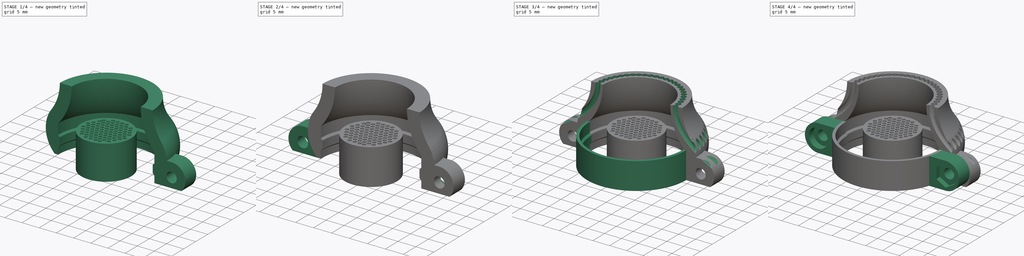
[diagram: build sequence overview — one tinted view per stage of 4, left to right]
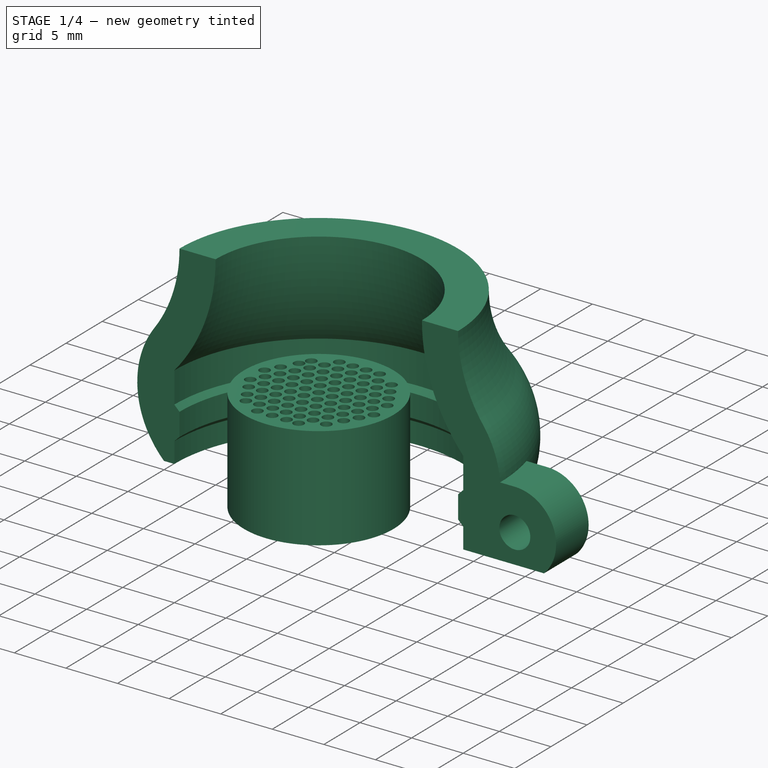
[diagram: stage 1 of 4 — iso view after this stage's code; geometry added in this stage tinted green]
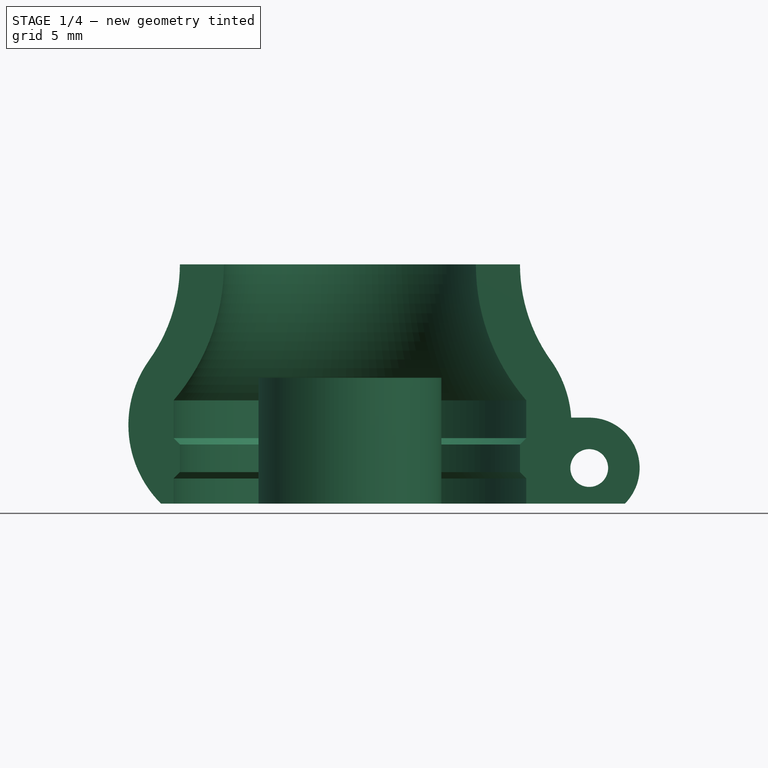
[diagram: stage 1 of 4 — front view after this stage's code; geometry added in this stage tinted green]
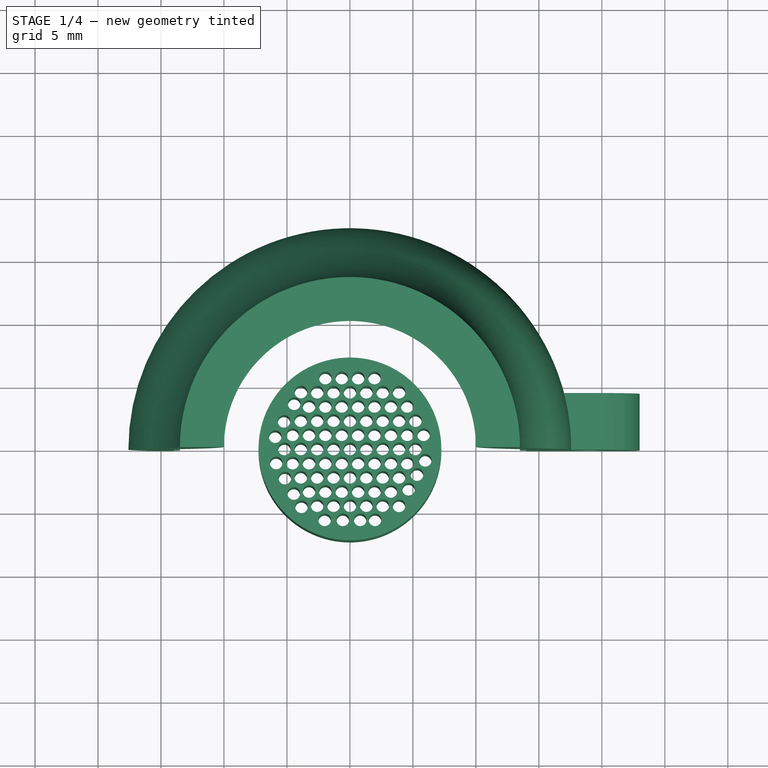
[diagram: stage 1 of 4 — top view after this stage's code; geometry added in this stage tinted green]
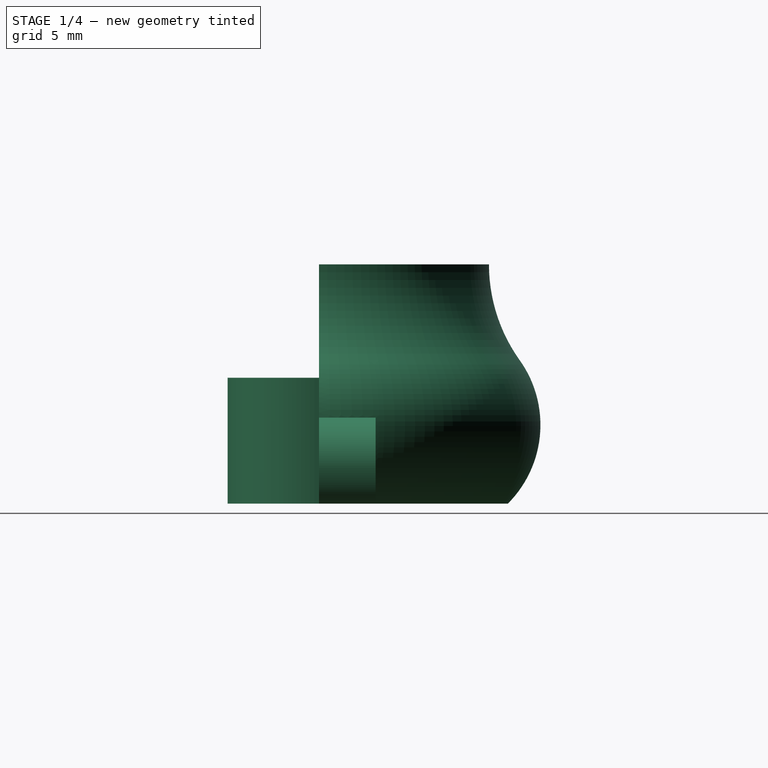
[diagram: stage 1 of 4 — right view after this stage's code; geometry added in this stage tinted green]
FCSTD DOCUMENT  (FreeCAD 0.19R24291 (Git))
Label: CAD
License: All rights reserved
LicenseURL: http://en.wikipedia.org/wiki/All_rights_reserved
objects: Sketcher::SketchObject×11, PartDesign::Pocket×4, PartDesign::Pad×3, PartDesign::Body×3, PartDesign::Revolution×2, PartDesign::Plane×1, PartDesign::Mirrored×1, PartDesign::SubtractivePipe×1, PartDesign::PolarPattern×1, App::Part×1
note: 37 computed .brp shape members not serialized (recipe doc carries the construction recipe); baked Part::Feature solids carry a one-line shape summary decoded from their .brp

FEATURE [Sketcher::SketchObject] Sketch004
  FullyConstrained = true
  MapMode = 5
  Placement = pos=(0,0,0) rot=(1,0,0;1.5708rad)
  Support = -> [XZ_Plane002]
  sketch-geometry (10):
    g0: LineSegment StartX=13.5 StartY=4.7 StartZ=0 EndX=13.5 EndY=2.5 EndZ=0
    g1: LineSegment StartX=13.5 StartY=2.5 StartZ=0 EndX=14 EndY=2 EndZ=0
    g2: LineSegment StartX=14 StartY=2 StartZ=0 EndX=14 EndY=0 EndZ=0
    g3: LineSegment StartX=14 StartY=0 StartZ=0 EndX=15 EndY=-1.8e-15 EndZ=0
    g4: LineSegment StartX=13.5 StartY=4.7 StartZ=0 EndX=14 EndY=5.2 EndZ=0
    g5: LineSegment StartX=14 StartY=5.2 StartZ=0 EndX=14 EndY=8.2 EndZ=0
    g6: LineSegment StartX=10 StartY=19 StartZ=0 EndX=13.5 EndY=19 EndZ=0
    g7: ArcOfCircle CenterX=26.58 CenterY=19 CenterZ=0 NormalX=0 NormalY=0 NormalZ=1 AngleXU=0 Radius=16.58 StartAngle=3.14159 EndAngle=3.851
    g8: ArcOfCircle CenterX=26.58 CenterY=19 CenterZ=0 NormalX=0 NormalY=0 NormalZ=1 AngleXU=0 Radius=13.08 StartAngle=3.14159 EndAngle=3.76233
    g9: ArcOfCircle CenterX=8.7493 CenterY=6.2507 CenterZ=0 NormalX=0 NormalY=0 NormalZ=1 AngleXU=0 Radius=8.83982 StartAngle=5.49779 EndAngle=6.90392
  constraints (32):
    c: Vertical(g0)
    c: Coincident(g0,g1)
    c: Coincident(g1,g2)
    c: PointOnObject(g2,g-1)
    c: Coincident(g2,g3)
    c: PointOnObject(g3,g-1)
    c: Coincident(g0,g4)
    c: Coincident(g4,g5)
    c: Vertical(g5)
    c: Vertical(g2)
    c: Angle(g1,g-1) = 0.785398
    c: Vertical(g1,g4)
    c: Distance(g2) = 2
    c: Distance(g5) = 3
    c: Angle(g4,g-2) = 0.785398
    c: Distance(g0) = 2.2
    c: DistanceX(g0,g4) = 0.5
    c: DistanceX(g-1,g5) = 14
    c: Horizontal(g6)
    c: DistanceX(g5,g9) = 1
    c: Coincident(g7,g6)
    c: Perpendicular(g7,g6,g6) = 1.5708
    c: Coincident(g7,g5)
    c: Distance(g6) = 3.5
    c: Coincident(g8,g7)
    c: Coincident(g8,g6)
    c: Coincident(g9,g8)
    c: Tangent(g8,g9,g8) = 1.5708
    c: DistanceY(g-1,g6) = 19
    c: Coincident(g9,g3)
    c: Angle(g-1,g9,g3) = 0.785398
    c: DistanceX(g-1,g6) = 10
FEATURE [PartDesign::Revolution] Revolution001
  Angle = 180
  Axis = (0,-2e-16,1)
  Base = (0,0,0)
  Placement = pos=(0,0,0) rot=(1,0,0;1.5708rad)
  Profile = -> Sketch004
  ReferenceAxis = -> Sketch004 [V_Axis]
FEATURE [Sketcher::SketchObject] Sketch005
  FullyConstrained = true
  MapMode = 5
  Placement = pos=(0,0,0) rot=(1,0,0;1.5708rad)
  Support = -> [Revolution001]
  sketch-geometry (5):
    g0: LineSegment StartX=14 StartY=0 StartZ=0 EndX=21.8284 EndY=-9e-16 EndZ=0
    g1: ArcOfCircle CenterX=19 CenterY=2.82843 CenterZ=0 NormalX=0 NormalY=0 NormalZ=1 AngleXU=0 Radius=4 StartAngle=5.49779 EndAngle=7.85398
    g2: LineSegment StartX=19 StartY=6.82843 StartZ=0 EndX=14 EndY=6.82843 EndZ=0
    g3: LineSegment StartX=14 StartY=6.82843 StartZ=0 EndX=14 EndY=0 EndZ=0
    g4: Circle CenterX=19 CenterY=2.82843 CenterZ=0 NormalX=0 NormalY=0 NormalZ=1 AngleXU=0 Radius=1.5
  constraints (15):
    c: PointOnObject(g0,g-1)
    c: PointOnObject(g0,g-1)
    c: Coincident(g1,g0)
    c: Coincident(g2,g1)
    c: Horizontal(g2)
    c: Coincident(g3,g2)
    c: Coincident(g3,g0)
    c: Vertical(g3)
    c: Radius(g1) = 4
    c: Tangent(g2,g1,g1) = -1.5708
    c: Coincident(g4,g1)
    c: Radius(g4) = 1.5
    c: Angle(g-1,g1,g0) = 0.785398
    c: Distance(g2) = 5
    c: Distance(g-1,g0) = 14
FEATURE [PartDesign::Pad] Pad001
  BaseFeature = -> Revolution001
  Direction = (1,1,1)
  Length = 4.5
  Length2 = 100
  Placement = pos=(0,0,0) rot=(1,0,0;1.5708rad)
  Profile = -> Sketch005
  Reversed = true
  Type = 0
FEATURE [PartDesign::Body] Body001  label="Mount half v0.2"
  Group = -> [Sketch004,Revolution001,Sketch005,Pad001,Mirrored,Sketch006,Pocket003,Sketch007,Pocket002,Sketch010,Sketch011,SubtractivePipe,PolarPattern]
  Origin = -> Origin002
  Tip = -> PolarPattern
FEATURE [Sketcher::SketchObject] Sketch012
  FullyConstrained = false
  MapMode = 5
  Support = -> [XY_Plane003]
  sketch-geometry (126):
    g0: Circle CenterX=0 CenterY=0 CenterZ=0 NormalX=0 NormalY=0 NormalZ=1 AngleXU=0 Radius=0.5
    g1: LineSegment StartX=1.3 StartY=0 StartZ=0 EndX=0.65 EndY=1.12583 EndZ=0
    g2: LineSegment StartX=0.65 StartY=1.12583 StartZ=0 EndX=-0.65 EndY=1.12583 EndZ=0
    g3: LineSegment StartX=-0.65 StartY=1.12583 StartZ=0 EndX=-1.3 EndY=0 EndZ=0
    g4: LineSegment StartX=-1.3 StartY=0 StartZ=0 EndX=-0.65 EndY=-1.12583 EndZ=0
    g5: LineSegment StartX=-0.65 StartY=-1.12583 StartZ=0 EndX=0.65 EndY=-1.12583 EndZ=0
    g6: LineSegment StartX=0.65 StartY=-1.12583 StartZ=0 EndX=1.3 EndY=0 EndZ=0
    g7: Circle CenterX=0 CenterY=0 CenterZ=0 NormalX=0 NormalY=0 NormalZ=1 AngleXU=0 Radius=1.3
    g8: LineSegment StartX=2.6 StartY=0 StartZ=0 EndX=1.3 EndY=2.25167 EndZ=0
    g9: LineSegment StartX=1.3 StartY=2.25167 StartZ=0 EndX=-1.3 EndY=2.25167 EndZ=0
    g10: LineSegment StartX=-1.3 StartY=2.25167 StartZ=0 EndX=-2.6 EndY=0 EndZ=0
    g11: LineSegment StartX=-2.6 StartY=0 StartZ=0 EndX=-1.3 EndY=-2.25167 EndZ=0
    g12: LineSegment StartX=-1.3 StartY=-2.25167 StartZ=0 EndX=1.3 EndY=-2.25167 EndZ=0
    g13: LineSegment StartX=1.3 StartY=-2.25167 StartZ=0 EndX=2.6 EndY=0 EndZ=0
    g14: Circle CenterX=0 CenterY=0 CenterZ=0 NormalX=0 NormalY=0 NormalZ=1 AngleXU=0 Radius=2.6
    g15: LineSegment StartX=3.9 StartY=0 StartZ=0 EndX=1.95 EndY=3.3775 EndZ=0
    g16: LineSegment StartX=1.95 StartY=3.3775 StartZ=0 EndX=-1.95 EndY=3.3775 EndZ=0
    g17: LineSegment StartX=-1.95 StartY=3.3775 StartZ=0 EndX=-3.9 EndY=-4e-16 EndZ=0
    g18: LineSegment StartX=-3.9 StartY=-4e-16 StartZ=0 EndX=-1.95 EndY=-3.3775 EndZ=0
    g19: LineSegment StartX=-1.95 StartY=-3.3775 StartZ=0 EndX=1.95 EndY=-3.3775 EndZ=0
    g20: LineSegment StartX=1.95 StartY=-3.3775 StartZ=0 EndX=3.9 EndY=0 EndZ=0
    g21: Circle CenterX=0 CenterY=0 CenterZ=0 NormalX=0 NormalY=0 NormalZ=1 AngleXU=0 Radius=3.9
    g22: Circle CenterX=-0.65 CenterY=1.12583 CenterZ=0 NormalX=0 NormalY=0 NormalZ=1 AngleXU=0 Radius=0.5
    g23: Circle CenterX=0.65 CenterY=1.12583 CenterZ=0 NormalX=0 NormalY=0 NormalZ=1 AngleXU=0 Radius=0.5
    g24: Circle CenterX=1.3 CenterY=0 CenterZ=0 NormalX=0 NormalY=0 NormalZ=1 AngleXU=0 Radius=0.5
    g25: Circle CenterX=0.65 CenterY=-1.12583 CenterZ=0 NormalX=0 NormalY=0 NormalZ=1 AngleXU=0 Radius=0.5
    g26: Circle CenterX=-0.65 CenterY=-1.12583 CenterZ=0 NormalX=0 NormalY=0 NormalZ=1 AngleXU=0 Radius=0.5
    g27: Circle CenterX=-1.3 CenterY=0 CenterZ=0 NormalX=0 NormalY=0 NormalZ=1 AngleXU=0 Radius=0.5
    g28: Circle CenterX=-1.3 CenterY=2.25167 CenterZ=0 NormalX=0 NormalY=0 NormalZ=1 AngleXU=0 Radius=0.5
    g29: Circle CenterX=-1e-16 CenterY=2.25167 CenterZ=0 NormalX=0 NormalY=0 NormalZ=1 AngleXU=0 Radius=0.5
    g30: Circle CenterX=1.3 CenterY=2.25167 CenterZ=0 NormalX=0 NormalY=0 NormalZ=1 AngleXU=0 Radius=0.5
    g31: Circle CenterX=1.95 CenterY=1.12583 CenterZ=0 NormalX=0 NormalY=0 NormalZ=1 AngleXU=0 Radius=0.5
    g32: Circle CenterX=2.6 CenterY=0 CenterZ=0 NormalX=0 NormalY=0 NormalZ=1 AngleXU=0 Radius=0.5
    g33: Circle CenterX=1.95 CenterY=-1.12583 CenterZ=0 NormalX=0 NormalY=0 NormalZ=1 AngleXU=0 Radius=0.5
    g34: Circle CenterX=1.3 CenterY=-2.25167 CenterZ=0 NormalX=0 NormalY=0 NormalZ=1 AngleXU=0 Radius=0.5
    g35: Circle CenterX=-3e-16 CenterY=-2.25167 CenterZ=0 NormalX=0 NormalY=0 NormalZ=1 AngleXU=0 Radius=0.5
    g36: Circle CenterX=-1.3 CenterY=-2.25167 CenterZ=0 NormalX=0 NormalY=0 NormalZ=1 AngleXU=0 Radius=0.5
    g37: Circle CenterX=-1.95 CenterY=-1.12583 CenterZ=0 NormalX=0 NormalY=0 NormalZ=1 AngleXU=0 Radius=0.5
    g38: Circle CenterX=-2.6 CenterY=0 CenterZ=0 NormalX=0 NormalY=0 NormalZ=1 AngleXU=0 Radius=0.5
    g39: Circle CenterX=-1.95 CenterY=1.12583 CenterZ=0 NormalX=0 NormalY=0 NormalZ=1 AngleXU=0 Radius=0.5
    g40: LineSegment StartX=1.3 StartY=2.25167 StartZ=0 EndX=0.65 EndY=1.12583 EndZ=0
    g41: Circle CenterX=-1.95 CenterY=3.3775 CenterZ=0 NormalX=0 NormalY=0 NormalZ=1 AngleXU=0 Radius=0.5
    g42: Circle CenterX=1.95 CenterY=3.3775 CenterZ=0 NormalX=0 NormalY=0 NormalZ=1 AngleXU=0 Radius=0.5
    g43: Circle CenterX=-0.65 CenterY=3.3775 CenterZ=0 NormalX=0 NormalY=0 NormalZ=1 AngleXU=0 Radius=0.5
    g44: Circle CenterX=0.65 CenterY=3.3775 CenterZ=0 NormalX=0 NormalY=0 NormalZ=1 AngleXU=0 Radius=0.5
    g45: Circle CenterX=2.6 CenterY=2.25167 CenterZ=0 NormalX=0 NormalY=0 NormalZ=1 AngleXU=0 Radius=0.5
    g46: Circle CenterX=3.25 CenterY=1.12583 CenterZ=0 NormalX=0 NormalY=0 NormalZ=1 AngleXU=0 Radius=0.5
    g47: Circle CenterX=3.9 CenterY=0 CenterZ=0 NormalX=0 NormalY=0 NormalZ=1 AngleXU=0 Radius=0.5
    g48: Circle CenterX=3.25 CenterY=-1.12583 CenterZ=0 NormalX=0 NormalY=0 NormalZ=1 AngleXU=0 Radius=0.5
    g49: Circle CenterX=2.6 CenterY=-2.25167 CenterZ=0 NormalX=0 NormalY=0 NormalZ=1 AngleXU=0 Radius=0.5
    g50: Circle CenterX=1.95 CenterY=-3.3775 CenterZ=0 NormalX=0 NormalY=0 NormalZ=1 AngleXU=0 Radius=0.5
    g51: Circle CenterX=0.65 CenterY=-3.3775 CenterZ=0 NormalX=0 NormalY=0 NormalZ=1 AngleXU=0 Radius=0.5
    g52: Circle CenterX=-0.65 CenterY=-3.3775 CenterZ=0 NormalX=0 NormalY=0 NormalZ=1 AngleXU=0 Radius=0.5
    g53: Circle CenterX=-1.95 CenterY=-3.3775 CenterZ=0 NormalX=0 NormalY=0 NormalZ=1 AngleXU=0 Radius=0.5
    g54: Circle CenterX=-2.6 CenterY=-2.25167 CenterZ=0 NormalX=0 NormalY=0 NormalZ=1 AngleXU=0 Radius=0.5
    g55: Circle CenterX=-3.25 CenterY=-1.12583 CenterZ=0 NormalX=0 NormalY=0 NormalZ=1 AngleXU=0 Radius=0.5
    g56: Circle CenterX=-3.9 CenterY=-4e-16 CenterZ=0 NormalX=0 NormalY=0 NormalZ=1 AngleXU=0 Radius=0.5
    g57: Circle CenterX=-3.25 CenterY=1.12583 CenterZ=0 NormalX=0 NormalY=0 NormalZ=1 AngleXU=0 Radius=0.5
    g58: Circle CenterX=-2.6 CenterY=2.25167 CenterZ=0 NormalX=0 NormalY=0 NormalZ=1 AngleXU=0 Radius=0.5
    g59: LineSegment StartX=1.3 StartY=2.25167 StartZ=0 EndX=1.95 EndY=3.3775 EndZ=0
    g60: LineSegment StartX=5.2 StartY=0 StartZ=0 EndX=2.6 EndY=4.50333 EndZ=0
    g61: LineSegment StartX=2.6 StartY=4.50333 StartZ=0 EndX=-2.6 EndY=4.50333 EndZ=0
    g62: LineSegment StartX=-2.6 StartY=4.50333 StartZ=0 EndX=-5.2 EndY=0 EndZ=0
    g63: LineSegment StartX=-5.2 StartY=0 StartZ=0 EndX=-2.6 EndY=-4.50333 EndZ=0
    g64: LineSegment StartX=-2.6 StartY=-4.50333 StartZ=0 EndX=2.6 EndY=-4.50333 EndZ=0
    g65: LineSegment StartX=2.6 StartY=-4.50333 StartZ=0 EndX=5.2 EndY=0 EndZ=0
    g66: Circle CenterX=0 CenterY=0 CenterZ=0 NormalX=0 NormalY=0 NormalZ=1 AngleXU=0 Radius=5.2
    g67: Circle CenterX=5.2 CenterY=0 CenterZ=0 NormalX=0 NormalY=0 NormalZ=1 AngleXU=0 Radius=0.5
    g68: Circle CenterX=4.55 CenterY=1.12583 CenterZ=0 NormalX=0 NormalY=0 NormalZ=1 AngleXU=0 Radius=0.5
    g69: Circle CenterX=3.9 CenterY=2.25167 CenterZ=0 NormalX=0 NormalY=0 NormalZ=1 AngleXU=0 Radius=0.5
    g70: Circle CenterX=3.25 CenterY=3.3775 CenterZ=0 NormalX=0 NormalY=0 NormalZ=1 AngleXU=0 Radius=0.5
    g71: Circle CenterX=2.6 CenterY=4.50333 CenterZ=0 NormalX=0 NormalY=0 NormalZ=1 AngleXU=0 Radius=0.5
    g72: Circle CenterX=1.3 CenterY=4.50333 CenterZ=0 NormalX=0 NormalY=0 NormalZ=1 AngleXU=0 Radius=0.5
    g73: Circle CenterX=0 CenterY=4.50333 CenterZ=0 NormalX=0 NormalY=0 NormalZ=1 AngleXU=0 Radius=0.5
    g74: Circle CenterX=-1.3 CenterY=4.50333 CenterZ=0 NormalX=0 NormalY=0 NormalZ=1 AngleXU=0 Radius=0.5
    g75: Circle CenterX=-2.6 CenterY=4.50333 CenterZ=0 NormalX=0 NormalY=0 NormalZ=1 AngleXU=0 Radius=0.5
    g76: Circle CenterX=-3.25 CenterY=3.3775 CenterZ=0 NormalX=0 NormalY=0 NormalZ=1 AngleXU=0 Radius=0.5
    g77: Circle CenterX=-3.9 CenterY=2.25167 CenterZ=0 NormalX=0 NormalY=0 NormalZ=1 AngleXU=0 Radius=0.5
    g78: Circle CenterX=-4.55 CenterY=1.12583 CenterZ=0 NormalX=0 NormalY=0 NormalZ=1 AngleXU=0 Radius=0.5
    g79: Circle CenterX=-5.2 CenterY=0 CenterZ=0 NormalX=0 NormalY=0 NormalZ=1 AngleXU=0 Radius=0.5
    g80: Circle CenterX=-4.55 CenterY=-1.12583 CenterZ=0 NormalX=0 NormalY=0 NormalZ=1 AngleXU=0 Radius=0.5
    g81: Circle CenterX=-3.9 CenterY=-2.25167 CenterZ=0 NormalX=0 NormalY=0 NormalZ=1 AngleXU=0 Radius=0.5
    g82: Circle CenterX=-3.25 CenterY=-3.3775 CenterZ=0 NormalX=0 NormalY=0 NormalZ=1 AngleXU=0 Radius=0.5
    g83: Circle CenterX=-2.6 CenterY=-4.50333 CenterZ=0 NormalX=0 NormalY=0 NormalZ=1 AngleXU=0 Radius=0.5
    g84: Circle CenterX=-1.3 CenterY=-4.50333 CenterZ=0 NormalX=0 NormalY=0 NormalZ=1 AngleXU=0 Radius=0.5
    g85: Circle CenterX=-3e-16 CenterY=-4.50333 CenterZ=0 NormalX=0 NormalY=0 NormalZ=1 AngleXU=0 Radius=0.5
    g86: Circle CenterX=1.3 CenterY=-4.50333 CenterZ=0 NormalX=0 NormalY=0 NormalZ=1 AngleXU=0 Radius=0.5
    g87: Circle CenterX=2.6 CenterY=-4.50333 CenterZ=0 NormalX=0 NormalY=0 NormalZ=1 AngleXU=0 Radius=0.5
    g88: Circle CenterX=3.25 CenterY=-3.3775 CenterZ=0 NormalX=0 NormalY=0 NormalZ=1 AngleXU=0 Radius=0.5
    g89: Circle CenterX=3.9 CenterY=-2.25167 CenterZ=0 NormalX=0 NormalY=0 NormalZ=1 AngleXU=0 Radius=0.5
    g90: Circle CenterX=4.55 CenterY=-1.12583 CenterZ=0 NormalX=0 NormalY=0 NormalZ=1 AngleXU=0 Radius=0.5
    g91: LineSegment StartX=1.95 StartY=3.3775 StartZ=0 EndX=2.6 EndY=4.50333 EndZ=0
    g92: LineSegment StartX=6.5 StartY=0 StartZ=0 EndX=3.25 EndY=5.62917 EndZ=0
    g93: LineSegment StartX=3.25 StartY=5.62917 StartZ=0 EndX=-3.25 EndY=5.62917 EndZ=0
    g94: LineSegment StartX=-3.25 StartY=5.62917 StartZ=0 EndX=-6.5 EndY=0 EndZ=0
    g95: LineSegment StartX=-6.5 StartY=-4e-16 StartZ=0 EndX=-3.25 EndY=-5.62917 EndZ=0
    g96: LineSegment StartX=-3.25 StartY=-5.62917 StartZ=0 EndX=3.25 EndY=-5.62917 EndZ=0
    g97: LineSegment StartX=3.25 StartY=-5.62917 StartZ=0 EndX=6.5 EndY=0 EndZ=0
    g98: Circle CenterX=0 CenterY=0 CenterZ=0 NormalX=0 NormalY=0 NormalZ=1 AngleXU=0 Radius=6.5
    g99: LineSegment StartX=2.6 StartY=4.50333 StartZ=0 EndX=3.25 EndY=5.62917 EndZ=0
    g100: Circle CenterX=3.9 CenterY=4.50333 CenterZ=0 NormalX=0 NormalY=0 NormalZ=1 AngleXU=0 Radius=0.5
    g101: Circle CenterX=4.55 CenterY=3.3775 CenterZ=0 NormalX=0 NormalY=0 NormalZ=1 AngleXU=0 Radius=0.5
    g102: Circle CenterX=5.2 CenterY=2.25167 CenterZ=0 NormalX=0 NormalY=0 NormalZ=1 AngleXU=0 Radius=0.5
    g103: Circle CenterX=5.85 CenterY=1.12583 CenterZ=0 NormalX=0 NormalY=0 NormalZ=1 AngleXU=0 Radius=0.5
    g104: Circle CenterX=-1.95 CenterY=5.62917 CenterZ=0 NormalX=0 NormalY=0 NormalZ=1 AngleXU=0 Radius=0.5
    g105: Circle CenterX=-0.65 CenterY=5.62917 CenterZ=0 NormalX=0 NormalY=0 NormalZ=1 AngleXU=0 Radius=0.5
    g106: Circle CenterX=0.65 CenterY=5.62917 CenterZ=0 NormalX=0 NormalY=0 NormalZ=1 AngleXU=0 Radius=0.5
    g107: Circle CenterX=1.95 CenterY=5.62917 CenterZ=0 NormalX=0 NormalY=0 NormalZ=1 AngleXU=0 Radius=0.5
    g108: Circle CenterX=-3.88944 CenterY=4.52162 CenterZ=0 NormalX=0 NormalY=0 NormalZ=1 AngleXU=0 Radius=0.5
    g109: Circle CenterX=-4.42709 CenterY=3.59039 CenterZ=0 NormalX=0 NormalY=0 NormalZ=1 AngleXU=0 Radius=0.5
    g110: Circle CenterX=-5.23451 CenterY=2.19189 CenterZ=0 NormalX=0 NormalY=0 NormalZ=1 AngleXU=0 Radius=0.5
    g111: Circle CenterX=-5.93593 CenterY=0.976995 CenterZ=0 NormalX=0 NormalY=0 NormalZ=1 AngleXU=0 Radius=0.5
    g112: Circle CenterX=-5.85695 CenterY=-1.11379 CenterZ=0 NormalX=0 NormalY=0 NormalZ=1 AngleXU=0 Radius=0.5
    g113: Circle CenterX=-5.16378 CenterY=-2.31439 CenterZ=0 NormalX=0 NormalY=0 NormalZ=1 AngleXU=0 Radius=0.5
    g114: Circle CenterX=-4.45824 CenterY=-3.53643 CenterZ=0 NormalX=0 NormalY=0 NormalZ=1 AngleXU=0 Radius=0.5
    g115: Circle CenterX=-3.84759 CenterY=-4.59411 CenterZ=0 NormalX=0 NormalY=0 NormalZ=1 AngleXU=0 Radius=0.5
    g116: Circle CenterX=-2.0052 CenterY=-5.62917 CenterZ=0 NormalX=0 NormalY=0 NormalZ=1 AngleXU=0 Radius=0.5
    g117: Circle CenterX=-0.564971 CenterY=-5.62917 CenterZ=0 NormalX=0 NormalY=0 NormalZ=1 AngleXU=0 Radius=0.5
    g118: Circle CenterX=0.814159 CenterY=-5.62917 CenterZ=0 NormalX=0 NormalY=0 NormalZ=1 AngleXU=0 Radius=0.5
    g119: Circle CenterX=1.99253 CenterY=-5.62917 CenterZ=0 NormalX=0 NormalY=0 NormalZ=1 AngleXU=0 Radius=0.5
    g120: Circle CenterX=3.89248 CenterY=-4.51636 CenterZ=0 NormalX=0 NormalY=0 NormalZ=1 AngleXU=0 Radius=0.5
    g121: Circle CenterX=4.65463 CenterY=-3.19627 CenterZ=0 NormalX=0 NormalY=0 NormalZ=1 AngleXU=0 Radius=0.5
    g122: Circle CenterX=5.32496 CenterY=-2.03523 CenterZ=0 NormalX=0 NormalY=0 NormalZ=1 AngleXU=0 Radius=0.5
    g123: Circle CenterX=5.97692 CenterY=-0.905999 CenterZ=0 NormalX=0 NormalY=0 NormalZ=1 AngleXU=0 Radius=0.5
    g124: Circle CenterX=0 CenterY=0 CenterZ=0 NormalX=0 NormalY=0 NormalZ=1 AngleXU=0 Radius=7.25735
    g125: LineSegment StartX=-1.95 StartY=5.62917 StartZ=0 EndX=-2.37552 EndY=6.85755 EndZ=0
  constraints (264):
    c: Coincident(g0,g-1)
    c: Radius(g0) = 0.5
    c: Coincident(g1,g2)
    c: Coincident(g2,g3)
    c: Coincident(g3,g4)
    c: Coincident(g4,g5)
    c: Coincident(g5,g6)
    c: Coincident(g6,g1)
    c: Equal(g1, g2-g6) x5
    c: PointOnObject(g1,g7)
    c: PointOnObject(g2,g7)
    c: PointOnObject(g3,g7)
    c: PointOnObject(g4,g7)
    c: PointOnObject(g5,g7)
    c: PointOnObject(g6,g7)
    c: Coincident(g7,g0)
    c: PointOnObject(g6,g-1)
    c: Coincident(g8,g9)
    c: Coincident(g9,g10)
    c: Coincident(g10,g11)
    c: Coincident(g11,g12)
    c: Coincident(g12,g13)
    c: Coincident(g13,g8)
    c: Equal(g8, g9-g13) x5
    c: PointOnObject(g8,g14)
    c: PointOnObject(g9,g14)
    c: PointOnObject(g10,g14)
    c: PointOnObject(g11,g14)
    c: PointOnObject(g12,g14)
    c: PointOnObject(g13,g14)
    c: Coincident(g14,g0)
    c: PointOnObject(g13,g-1)
    c: Coincident(g15,g16)
    c: Coincident(g16,g17)
    c: Coincident(g17,g18)
    c: Coincident(g18,g19)
    c: Coincident(g19,g20)
    c: Coincident(g20,g15)
    c: Equal(g15, g16-g20) x5
    c: PointOnObject(g15,g21)
    c: PointOnObject(g16,g21)
    c: PointOnObject(g17,g21)
    c: PointOnObject(g18,g21)
    c: PointOnObject(g19,g21)
    c: PointOnObject(g20,g21)
    c: Coincident(g21,g0)
    c: PointOnObject(g20,g-1)
    c: Coincident(g22,g2)
    c: Coincident(g23,g1)
    c: Coincident(g24,g1)
    c: Coincident(g25,g5)
    c: Coincident(g26,g4)
    c: Coincident(g27,g3)
    c: Equal(g22,g27)
    c: Equal(g27,g26)
    c: Equal(g26,g25)
    c: Equal(g25,g24)
    c: Equal(g24,g23)
    c: Equal(g23,g0)
    c: Distance(g1) = 1.3
    c: Coincident(g28,g9)
    c: Coincident(g30,g8)
    c: Coincident(g32,g8)
    c: Coincident(g34,g12)
    c: Coincident(g36,g11)
    c: Coincident(g38,g10)
    c: Equal(g39,g28)
    c: Equal(g28,g29)
    c: Equal(g29,g30)
    c: Equal(g30,g31)
    c: Equal(g31,g32)
    c: Equal(g32,g33)
    c: Equal(g33,g34)
    c: Equal(g34,g35)
    c: Equal(g35,g36)
    c: Equal(g36,g37)
    c: Equal(g37,g38)
    c: Equal(g38,g0)
    c: Coincident(g40,g30)
    c: Coincident(g40,g23)
    c: Equal(g40,g1)
    c: Symmetric(g9,g9,g29)
    c: Symmetric(g10,g10,g39)
    c: Symmetric(g11,g11,g37)
    c: Symmetric(g12,g12,g35)
    c: Symmetric(g13,g13,g33)
    c: Symmetric(g8,g8,g31)
    c: Coincident(g41,g16)
    c: Coincident(g42,g15)
    c: Coincident(g47,g15)
    c: Coincident(g50,g19)
    c: Coincident(g53,g18)
    c: Coincident(g56,g17)
    c: Equal(g41,g58)
    c: Equal(g58,g57)
    c: Equal(g57,g56)
    c: Equal(g56,g55)
    c: Equal(g55,g54)
    c: Equal(g54,g53)
    c: Equal(g53,g52)
    c: Equal(g52,g51)
    c: Equal(g51,g50)
    c: Equal(g50,g49)
    c: Equal(g49,g48)
    c: Equal(g48,g47)
    c: Equal(g47,g46)
    c: Equal(g46,g45)
    c: Equal(g45,g42)
    c: Equal(g42,g44)
    c: Equal(g44,g43)
    c: Equal(g43,g0)
    c: Coincident(g59,g30)
    c: Coincident(g59,g42)
    c: Equal(g59,g40)
    c: Symmetric(g41,g44,g43)
    c: Symmetric(g43,g42,g44)
    c: Symmetric(g57,g41,g58)
    c: Symmetric(g56,g58,g57)
    c: Symmetric(g56,g54,g55)
    c: Symmetric(g55,g53,g54)
    c: Symmetric(g53,g51,g52)
    c: Symmetric(g52,g50,g51)
    c: Symmetric(g48,g50,g49)
    c: Symmetric(g47,g49,g48)
    c: Symmetric(g45,g47,g46)
    c: Symmetric(g42,g46,g45)
    c: Coincident(g60,g61)
    c: Coincident(g61,g62)
    c: Coincident(g62,g63)
    c: Coincident(g63,g64)
    c: Coincident(g64,g65)
    c: Coincident(g65,g60)
    c: Equal(g60, g61-g65) x5
    c: PointOnObject(g60,g66)
    c: PointOnObject(g61,g66)
    c: PointOnObject(g62,g66)
    c: PointOnObject(g63,g66)
    c: PointOnObject(g64,g66)
    c: PointOnObject(g65,g66)
    c: Coincident(g66,g0)
    c: PointOnObject(g65,g-1)
    c: Coincident(g67,g60)
    c: Coincident(g71,g60)
    c: Coincident(g75,g61)
    c: Coincident(g79,g62)
    c: Coincident(g83,g63)
    c: Coincident(g87,g64)
    c: Equal(g75,g74)
    c: Equal(g74,g73)
    c: Equal(g73,g72)
    c: Equal(g72,g71)
    c: Equal(g71,g70)
    c: Equal(g70,g69)
    c: Equal(g69,g68)
    c: Equal(g68,g67)
    c: Equal(g67,g90)
    c: Equal(g90,g89)
    c: Equal(g89,g88)
    c: Equal(g88,g87)
    c: Equal(g87,g86)
    c: Equal(g86,g85)
    c: Equal(g85,g84)
    c: Equal(g84,g83)
    c: Equal(g83,g82)
    c: Equal(g82,g81)
    c: Equal(g81,g80)
    c: Equal(g80,g79)
    c: Equal(g79,g78)
    c: Equal(g78,g77)
    c: Equal(g77,g76)
    c: Equal(g76,g0)
    c: Coincident(g91,g42)
    c: Coincident(g91,g71)
    c: Equal(g91,g59)
    c: Symmetric(g61,g61,g73)
    c: Symmetric(g60,g60,g69)
    c: Symmetric(g65,g65,g89)
    c: Symmetric(g64,g64,g85)
    c: Symmetric(g63,g63,g81)
    c: Symmetric(g62,g62,g77)
    c: Symmetric(g79,g77,g78)
    c: Symmetric(g75,g77,g76)
    c: Symmetric(g75,g73,g74)
    c: Symmetric(g73,g71,g72)
    c: Symmetric(g71,g69,g70)
    c: Symmetric(g69,g67,g68)
    c: Symmetric(g67,g89,g90)
    c: Symmetric(g87,g89,g88)
    c: Symmetric(g87,g85,g86)
    c: Symmetric(g83,g85,g84)
    c: Symmetric(g81,g83,g82)
    c: Symmetric(g79,g81,g80)
    c: Coincident(g92,g93)
    c: Coincident(g93,g94)
    c: Coincident(g94,g95)
    c: Coincident(g95,g96)
    c: Coincident(g96,g97)
    c: Coincident(g97,g92)
    c: Equal(g92, g93-g97) x5
    c: PointOnObject(g92,g98)
    c: PointOnObject(g93,g98)
    c: PointOnObject(g94,g98)
    c: PointOnObject(g95,g98)
    c: PointOnObject(g96,g98)
    c: PointOnObject(g97,g98)
    c: Coincident(g98,g0)
    c: PointOnObject(g97,g-1)
    c: Coincident(g99,g71)
    c: Coincident(g99,g92)
    c: Equal(g91,g99)
    c: PointOnObject(g108,g94)
    c: PointOnObject(g109,g94)
    c: Tangent(g109,g66)
    c: PointOnObject(g110,g94)
    c: PointOnObject(g111,g94)
    c: PointOnObject(g112,g95)
    c: PointOnObject(g113,g95)
    c: PointOnObject(g114,g95)
    c: PointOnObject(g115,g95)
    c: PointOnObject(g116,g96)
    c: PointOnObject(g117,g96)
    c: PointOnObject(g118,g96)
    c: PointOnObject(g119,g96)
    c: PointOnObject(g120,g97)
    c: PointOnObject(g121,g97)
    c: PointOnObject(g122,g97)
    c: PointOnObject(g123,g97)
    c: Equal(g115,g114)
    c: Equal(g114,g113)
    c: Equal(g113,g112)
    c: Equal(g112,g111)
    c: Equal(g111,g110)
    c: Equal(g110,g109)
    c: Equal(g109,g108)
    c: Equal(g108,g104)
    c: Equal(g104,g105)
    c: Equal(g105,g106)
    c: Equal(g106,g107)
    c: Equal(g107,g100)
    c: Equal(g100,g101)
    c: Equal(g101,g102)
    c: Equal(g102,g103)
    c: Equal(g103,g123)
    c: Equal(g123,g122)
    c: Equal(g122,g121)
    c: Equal(g121,g120)
    c: Equal(g120,g119)
    c: Equal(g119,g118)
    c: Equal(g118,g117)
    c: Equal(g117,g116)
    c: Equal(g116,g0)
    c: Symmetric(g102,g92,g103)
    c: Symmetric(g101,g103,g102)
    c: Symmetric(g100,g102,g101)
    c: Symmetric(g101,g92,g100)
    c: Symmetric(g106,g92,g107)
    c: Symmetric(g105,g107,g106)
    c: Symmetric(g106,g104,g105)
    c: Symmetric(g93,g105,g104)
    c: Coincident(g124,g0)
    c: Coincident(g125,g104)
    c: PointOnObject(g125,g124)
    c: PointOnObject(g0,g125)
    c: Equal(g125,g99)
FEATURE [PartDesign::Pad] Pad002
  Direction = (1,1,1)
  Length = 10
  Length2 = 100
  Profile = -> Sketch012
  Type = 0
FEATURE [PartDesign::Body] Body002  label="Lamp mount v0.1"
  Group = -> [Sketch012,Pad002]
  Origin = -> Origin003
  Tip = -> Pad002
FEATURE [App::Part] Part  label="Light mount"
  Group = -> [Body,Body001,Body002]
  Origin = -> Origin001
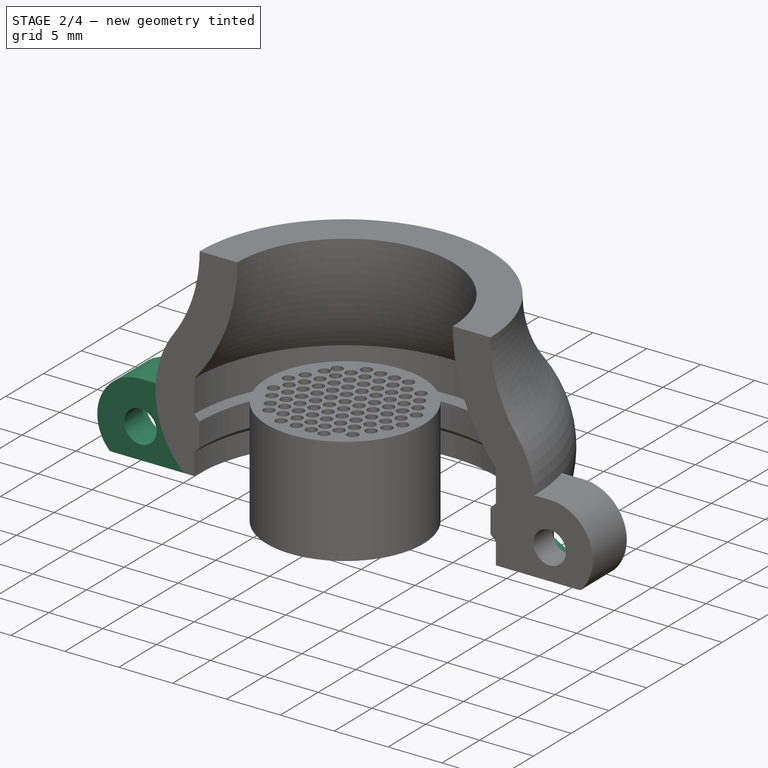
[diagram: stage 2 of 4 — iso view after this stage's code; geometry added in this stage tinted green]
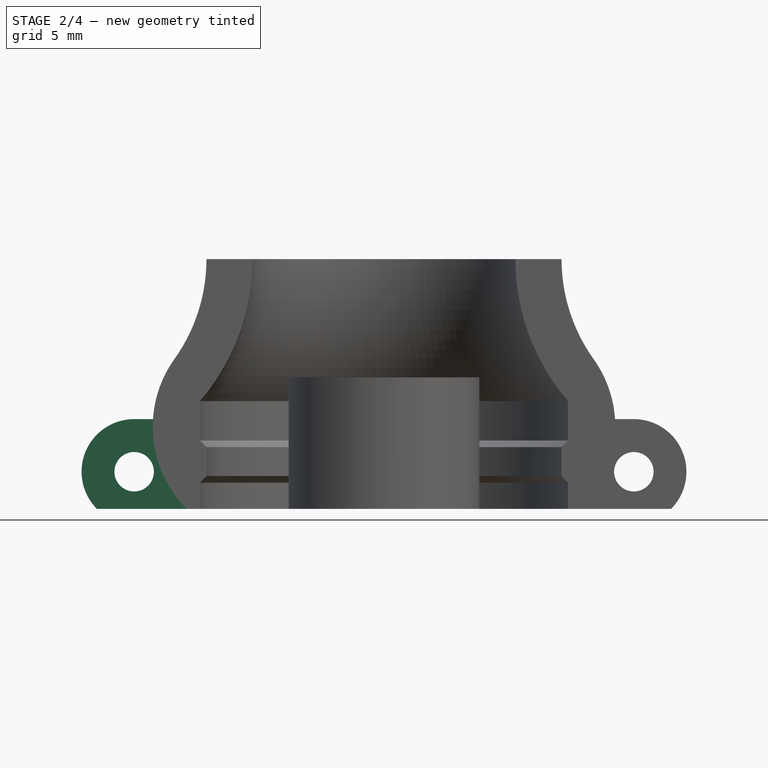
[diagram: stage 2 of 4 — front view after this stage's code; geometry added in this stage tinted green]
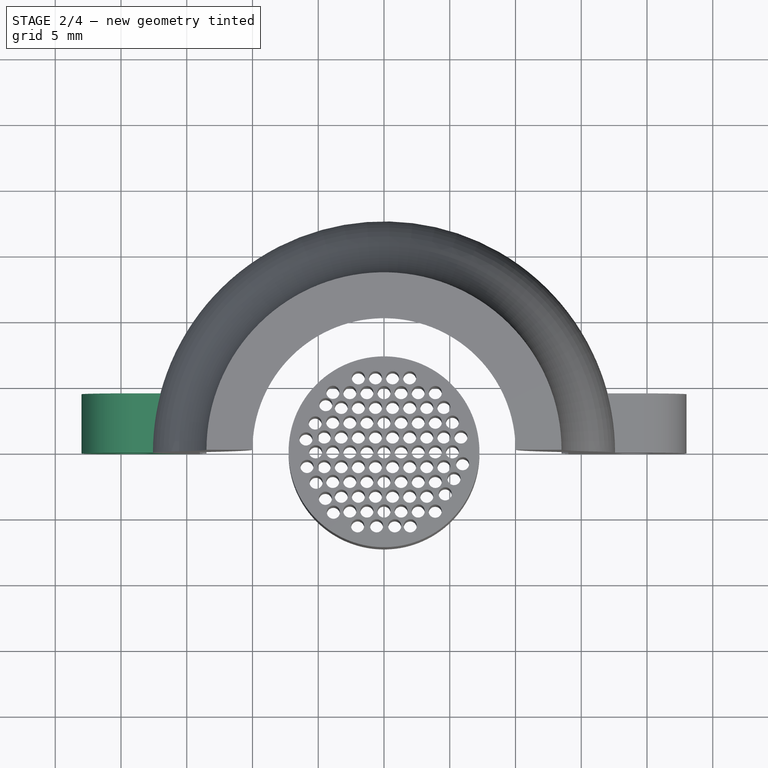
[diagram: stage 2 of 4 — top view after this stage's code; geometry added in this stage tinted green]
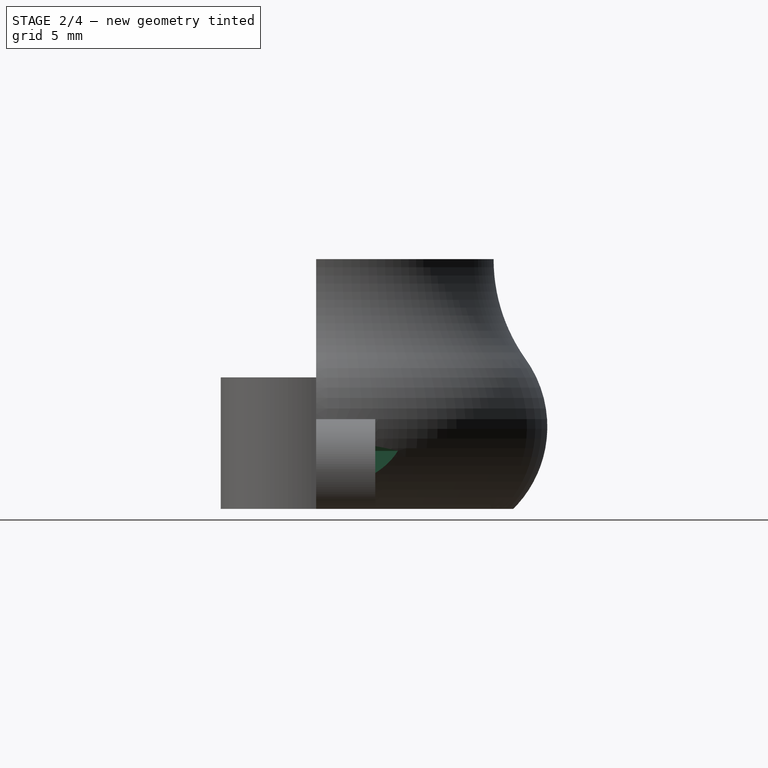
[diagram: stage 2 of 4 — right view after this stage's code; geometry added in this stage tinted green]
FEATURE [PartDesign::Plane] DatumPlane
  Length = 51.3431
  ResizeMode = 0
  Width = 22.7496
FEATURE [PartDesign::Body] Body  label="Mount half v0.1"
  Group = -> [Sketch,Revolution,Sketch001,Pad,Sketch002,Pocket,Sketch003,Pocket001,DatumPlane]
  Origin = -> Origin
  Tip = -> Pocket001
FEATURE [Sketcher::SketchObject] Sketch010
  FullyConstrained = true
  MapMode = 5
  Placement = pos=(0,0,0) rot=(1,0,0;1.5708rad)
  Support = -> [XZ_Plane002]
  sketch-geometry (8):
    g0: Circle CenterX=-11.5 CenterY=19 CenterZ=0 NormalX=0 NormalY=0 NormalZ=1 AngleXU=0 Radius=1
    g1: Circle CenterX=-11.5 CenterY=11 CenterZ=0 NormalX=0 NormalY=0 NormalZ=1 AngleXU=0 Radius=1
    g2: Circle CenterX=-23.282 CenterY=5.50596 CenterZ=0 NormalX=0 NormalY=0 NormalZ=1 AngleXU=0 Radius=1
    g3: BSplineCurve PolesCount=3 KnotsCount=2 Degree=2 IsPeriodic=0
    g4: GeomPoint X=-11.5 Y=19 Z=0
    g5: GeomPoint X=-23.282 Y=5.50596 Z=0
    g6: LineSegment StartX=-23.282 StartY=5.50596 StartZ=0 EndX=-11.5 EndY=11 EndZ=0
    g7: LineSegment StartX=-11.5 StartY=19 StartZ=0 EndX=-11.5 EndY=11 EndZ=0
  constraints (18):
    c: DistanceX(g3,g-1) = 11.5
    c: Weight(g0) = 1
    c: Equal(g0,g1)
    c: Equal(g0,g2)
    c: InternalAlignment(g0,g3)
    c: InternalAlignment(g1,g3)
    c: InternalAlignment(g2,g3)
    c: InternalAlignment(g4,g3)
    c: InternalAlignment(g5,g3)
    c: Coincident(g6,g3)
    c: Coincident(g6,g1)
    c: Coincident(g7,g6)
    c: Vertical(g7)
    c: DistanceY(g-1,g3) = 19
    c: Coincident(g7,g3)
    c: Distance(g6) = 13
    c: Distance(g7) = 8
    c: Angle(g7,g6) = 2.00713
FEATURE [PartDesign::Mirrored] Mirrored
  BaseFeature = -> Pad001
  MirrorPlane = -> Sketch005 [V_Axis]
  Originals = -> [Pad001]
  Placement = pos=(0,0,0) rot=(1,0,0;1.5708rad)
FEATURE [Sketcher::SketchObject] Sketch006
  FullyConstrained = true
  MapMode = 5
  Placement = pos=(0,4.5,1e-15) rot=(-1,0,0;1.5708rad)
  Support = -> [Mirrored]
  sketch-geometry (8):
    g0: LineSegment StartX=21.75 StartY=-4.41614 StartZ=0 EndX=21.75 EndY=-1.24071 EndZ=0
    g1: LineSegment StartX=21.75 StartY=-1.24071 StartZ=0 EndX=19 EndY=0.346999 EndZ=0
    g2: LineSegment StartX=19 StartY=0.346999 StartZ=0 EndX=16.25 EndY=-1.24071 EndZ=0
    g3: LineSegment StartX=16.25 StartY=-1.24071 StartZ=0 EndX=16.25 EndY=-4.41614 EndZ=0
    g4: LineSegment StartX=16.25 StartY=-4.41614 StartZ=0 EndX=19 EndY=-6.00385 EndZ=0
    g5: LineSegment StartX=19 StartY=-6.00385 StartZ=0 EndX=21.75 EndY=-4.41614 EndZ=0
    g6: Circle CenterX=19 CenterY=-2.82843 CenterZ=0 NormalX=0 NormalY=0 NormalZ=1 AngleXU=0 Radius=3.17543
    g7: ArcOfCircle CenterX=19 CenterY=-2.82843 CenterZ=0 NormalX=0 NormalY=0 NormalZ=1 AngleXU=0 Radius=4 StartAngle=0.408168 EndAngle=0.785398
  constraints (21):
    c: Coincident(g0,g1)
    c: Coincident(g1,g2)
    c: Coincident(g2,g3)
    c: Coincident(g3,g4)
    c: Coincident(g4,g5)
    c: Coincident(g5,g0)
    c: Equal(g0, g1-g5) x5
    c: PointOnObject(g0,g6)
    c: PointOnObject(g1,g6)
    c: PointOnObject(g2,g6)
    c: PointOnObject(g3,g6)
    c: PointOnObject(g4,g6)
    c: PointOnObject(g5,g6)
    c: Vertical(g1,g6)
    c: DistanceX(g-1,g6) = 19
    c: DistanceX(g2,g0) = 5.5
    c: Coincident(g7,g6)
    c: PointOnObject(g7,g-1)
    c: Angle(g-1,g7,g7) = 2.35619
    c: Radius(g7) = 4
    c: Horizontal(g7,g0)
FEATURE [PartDesign::Pocket] Pocket003
  BaseFeature = -> Mirrored
  Length = 4
  Length2 = 100
  Midplane = true
  Placement = pos=(0,0,0) rot=(1,0,0;1.5708rad)
  Profile = -> Sketch006
  Type = 0
FEATURE [Sketcher::SketchObject] Sketch007
  FullyConstrained = true
  MapMode = 5
  Placement = pos=(0,4.5,1e-15) rot=(-1,0,0;1.5708rad)
  Support = -> [Pocket003]
  sketch-geometry (2):
    g0: Circle CenterX=-19 CenterY=-2.82843 CenterZ=0 NormalX=0 NormalY=0 NormalZ=1 AngleXU=0 Radius=2.8
    g1: ArcOfCircle CenterX=-19 CenterY=-2.82843 CenterZ=0 NormalX=0 NormalY=0 NormalZ=1 AngleXU=0 Radius=4 StartAngle=2.35619 EndAngle=3.14159
  constraints (7):
    c: DistanceX(g0,g-1) = 19
    c: Radius(g0) = 2.8
    c: Coincident(g1,g0)
    c: PointOnObject(g1,g-1)
    c: Angle(g1,g-1,g1) = 2.35619
    c: Horizontal(g1,g0)
    c: Radius(g1) = 4
FEATURE [PartDesign::Pocket] Pocket002
  BaseFeature = -> Pocket003
  Length = 2
  Length2 = 100
  Placement = pos=(0,0,0) rot=(1,0,0;1.5708rad)
  Profile = -> Sketch007
  Type = 4
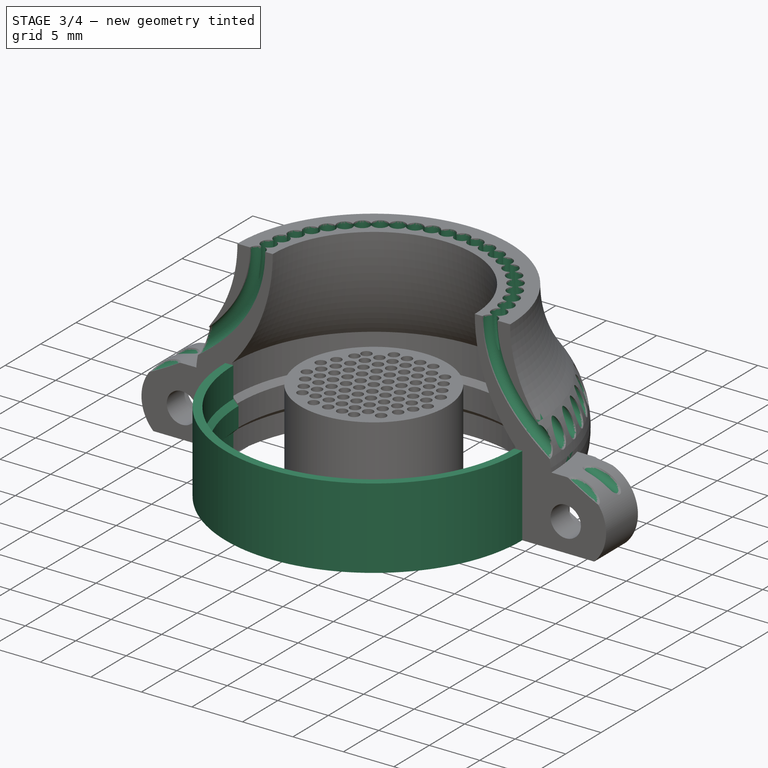
[diagram: stage 3 of 4 — iso view after this stage's code; geometry added in this stage tinted green]
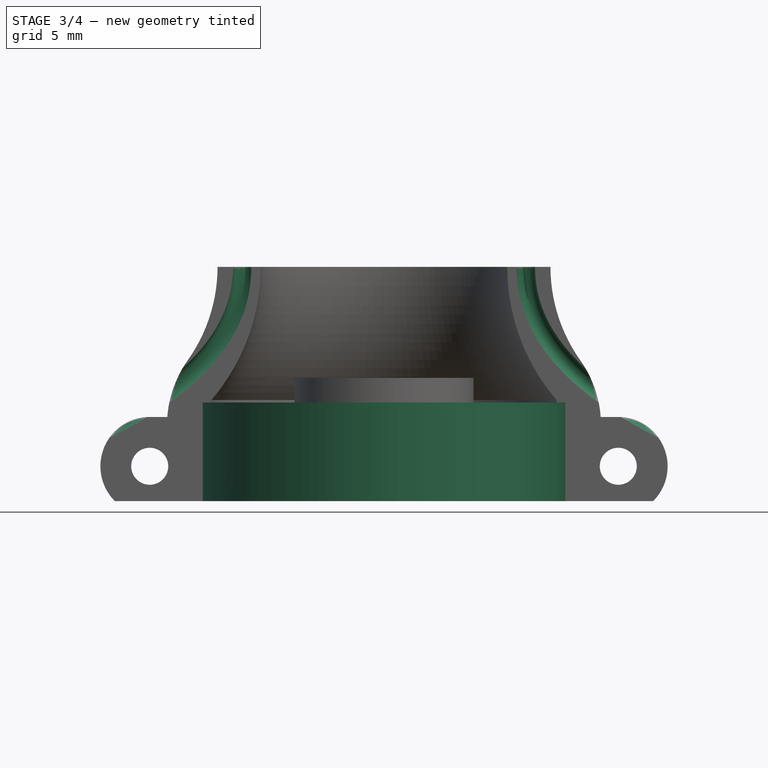
[diagram: stage 3 of 4 — front view after this stage's code; geometry added in this stage tinted green]
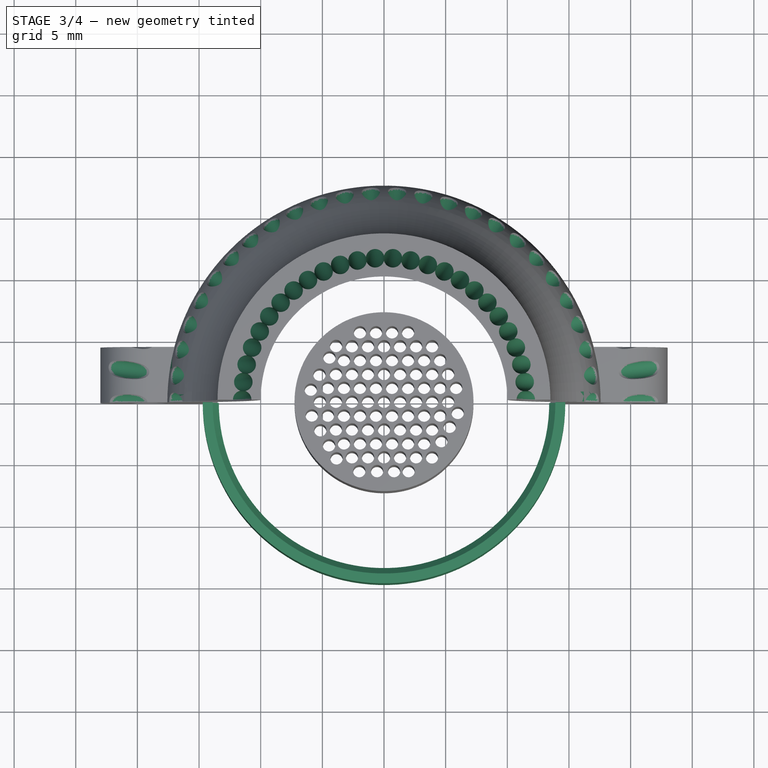
[diagram: stage 3 of 4 — top view after this stage's code; geometry added in this stage tinted green]
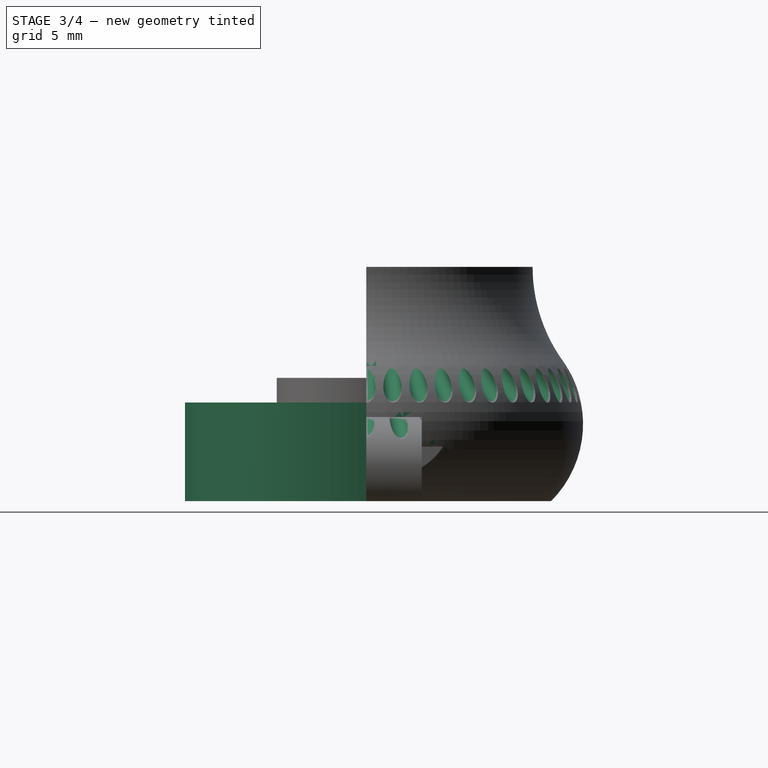
[diagram: stage 3 of 4 — right view after this stage's code; geometry added in this stage tinted green]
FEATURE [Sketcher::SketchObject] Sketch
  FullyConstrained = true
  MapMode = 5
  Placement = pos=(0,0,0) rot=(1,0,0;1.5708rad)
  Support = -> [XZ_Plane]
  sketch-geometry (8):
    g0: LineSegment StartX=13.4 StartY=4.5 StartZ=0 EndX=13.4 EndY=2.5 EndZ=0
    g1: LineSegment StartX=13.4 StartY=2.5 StartZ=0 EndX=13.9 EndY=2 EndZ=0
    g2: LineSegment StartX=13.9 StartY=2 StartZ=0 EndX=13.9 EndY=0 EndZ=0
    g3: LineSegment StartX=13.9 StartY=0 StartZ=0 EndX=14.7 EndY=0 EndZ=0
    g4: LineSegment StartX=14.7 StartY=0 StartZ=0 EndX=14.7 EndY=8 EndZ=0
    g5: LineSegment StartX=13.4 StartY=4.5 StartZ=0 EndX=13.9 EndY=5 EndZ=0
    g6: LineSegment StartX=13.9 StartY=5 StartZ=0 EndX=13.9 EndY=8 EndZ=0
    g7: LineSegment StartX=13.9 StartY=8 StartZ=0 EndX=14.7 EndY=8 EndZ=0
  constraints (24):
    c: Vertical(g0)
    c: Coincident(g0,g1)
    c: Coincident(g1,g2)
    c: PointOnObject(g2,g-1)
    c: Coincident(g2,g3)
    c: PointOnObject(g3,g-1)
    c: Coincident(g0,g5)
    c: Coincident(g5,g6)
    c: Vertical(g6)
    c: Coincident(g6,g7)
    c: Coincident(g7,g4)
    c: Horizontal(g7)
    c: Vertical(g4)
    c: Vertical(g2)
    c: Angle(g1,g-1) = 0.785398
    c: Distance(g7) = 0.8
    c: Vertical(g1,g5)
    c: Distance(g2) = 2
    c: Distance(g6) = 3
    c: Angle(g5,g-2) = 0.785398
    c: Distance(g0) = 2
    c: DistanceX(g0,g5) = 0.5
    c: Coincident(g4,g3)
    c: DistanceX(g-1,g6) = 13.9
FEATURE [PartDesign::Revolution] Revolution
  Angle = 180
  Axis = (0,2e-16,1)
  Base = (0,0,0)
  Placement = pos=(0,0,0) rot=(1,0,0;1.5708rad)
  Profile = -> Sketch
  ReferenceAxis = -> Sketch [V_Axis]
  Reversed = true
FEATURE [Sketcher::SketchObject] Sketch011
  FullyConstrained = true
  MapMode = 5
  Placement = pos=(0,-4.2e-15,19) rot=(0,0,1;3.14159rad)
  Support = -> [Pocket002]
  sketch-geometry (1):
    g0: Circle CenterX=11.5 CenterY=0 CenterZ=0 NormalX=0 NormalY=0 NormalZ=1 AngleXU=0 Radius=0.75
  constraints (3):
    c: PointOnObject(g0,g-1)
    c: Radius(g0) = 0.75
    c: DistanceX(g-1,g0) = 11.5
FEATURE [PartDesign::SubtractivePipe] SubtractivePipe
  AuxilleryCurvelinear = true
  AuxillerySpineTangent = false
  BaseFeature = -> Pocket002
  Binormal = (0,0,0)
  Mode = 0
  Placement = pos=(0,0,0) rot=(1,0,0;1.5708rad)
  Profile = -> Sketch011
  Spine = -> Sketch010
  SpineTangent = false
  Transformation = 0
  Transition = 0
FEATURE [PartDesign::PolarPattern] PolarPattern
  Angle = 180
  Axis = -> Z_Axis002
  BaseFeature = -> SubtractivePipe
  Occurrences = 26
  Originals = -> [SubtractivePipe]
  Placement = pos=(0,0,0) rot=(1,0,0;1.5708rad)
  Reversed = true
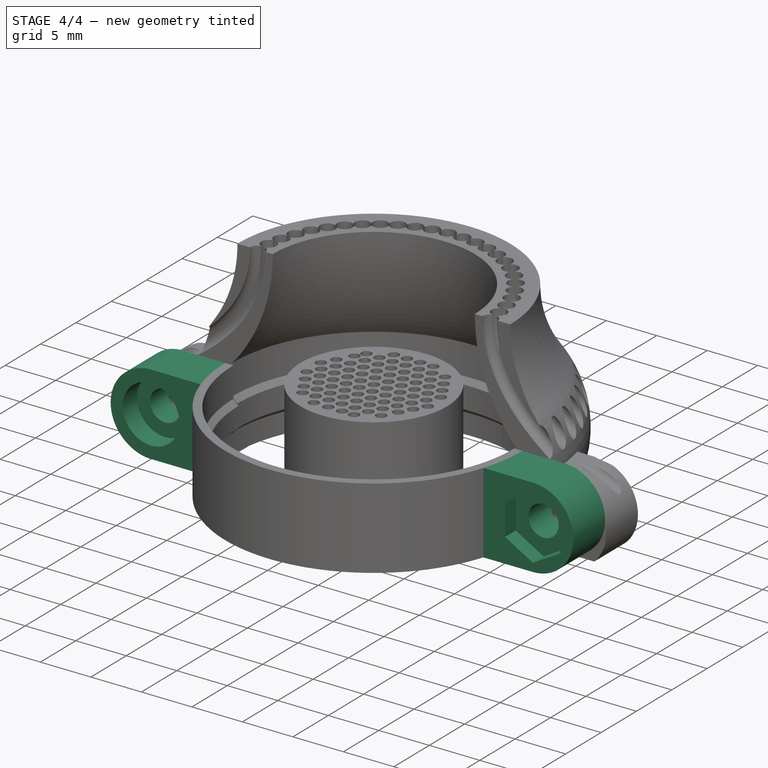
[diagram: stage 4 of 4 — iso view after this stage's code; geometry added in this stage tinted green]
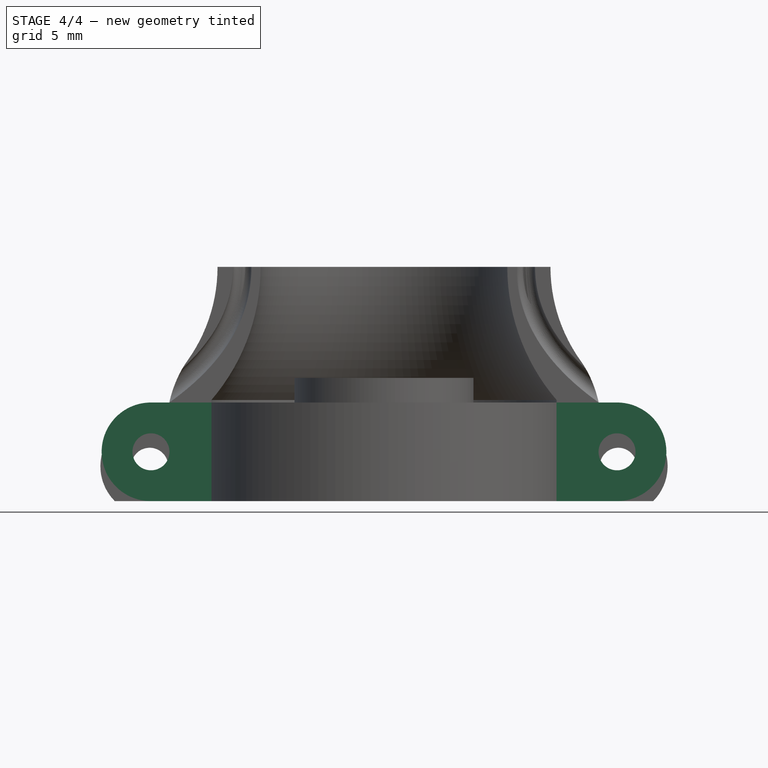
[diagram: stage 4 of 4 — front view after this stage's code; geometry added in this stage tinted green]
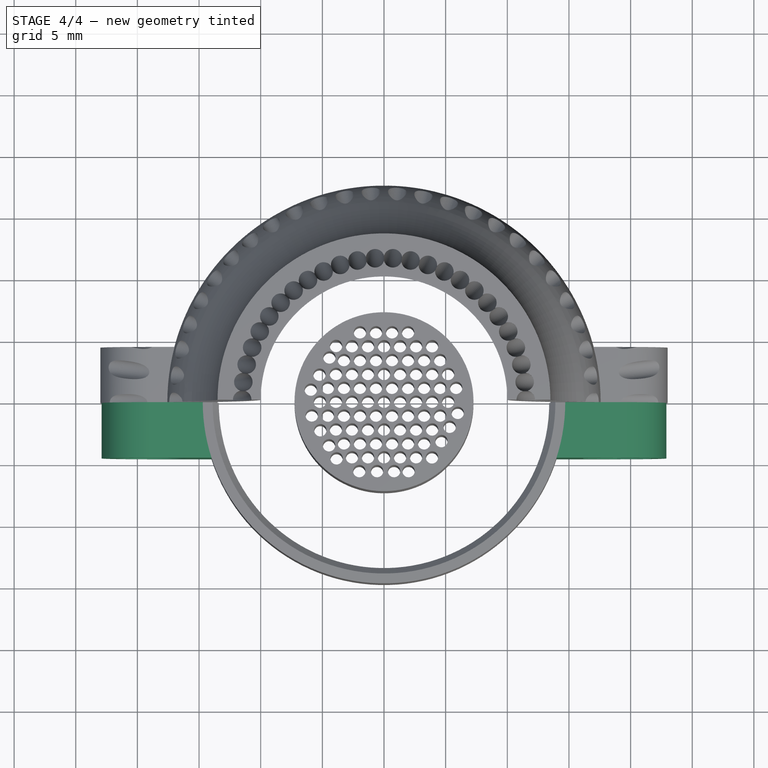
[diagram: stage 4 of 4 — top view after this stage's code; geometry added in this stage tinted green]
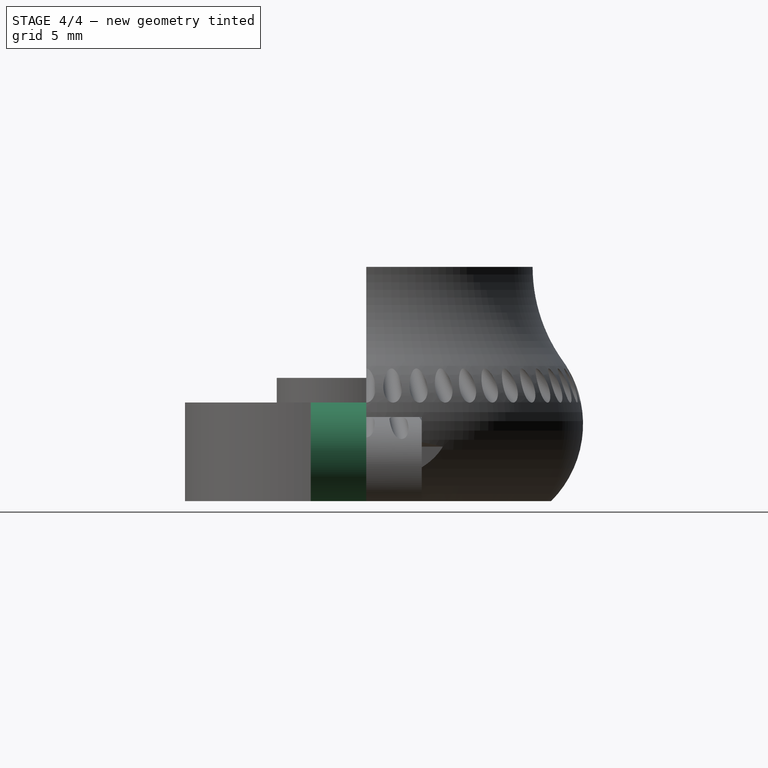
[diagram: stage 4 of 4 — right view after this stage's code; geometry added in this stage tinted green]
FEATURE [Sketcher::SketchObject] Sketch001
  FullyConstrained = true
  MapMode = 5
  Placement = pos=(0,0,0) rot=(-1,0,0;1.5708rad)
  Support = -> [Revolution]
  sketch-geometry (10):
    g0: ArcOfCircle CenterX=18.9 CenterY=-4 CenterZ=0 NormalX=0 NormalY=0 NormalZ=1 AngleXU=0 Radius=4 StartAngle=4.71239 EndAngle=7.85398
    g1: LineSegment StartX=13.9 StartY=0 StartZ=0 EndX=13.9 EndY=-8 EndZ=0
    g2: LineSegment StartX=13.9 StartY=-8 StartZ=0 EndX=18.9 EndY=-8 EndZ=0
    g3: Circle CenterX=18.9 CenterY=-4 CenterZ=0 NormalX=0 NormalY=0 NormalZ=1 AngleXU=0 Radius=1.5
    g4: LineSegment StartX=18.9 StartY=0 StartZ=0 EndX=13.9 EndY=0 EndZ=0
    g5: ArcOfCircle CenterX=-18.9 CenterY=-4 CenterZ=0 NormalX=0 NormalY=0 NormalZ=1 AngleXU=0 Radius=4 StartAngle=1.5708 EndAngle=4.71239
    g6: LineSegment StartX=-13.9 StartY=-8 StartZ=0 EndX=-13.9 EndY=0 EndZ=0
    g7: LineSegment StartX=-13.9 StartY=0 StartZ=0 EndX=-18.9 EndY=0 EndZ=0
    g8: Circle CenterX=-18.9 CenterY=-4 CenterZ=0 NormalX=0 NormalY=0 NormalZ=1 AngleXU=0 Radius=1.5
    g9: LineSegment StartX=-18.9 StartY=-8 StartZ=0 EndX=-13.9 EndY=-8 EndZ=0
  constraints (29):
    c: PointOnObject(g0,g-1)
    c: Vertical(g0,g0)
    c: PointOnObject(g1,g-1)
    c: Vertical(g1)
    c: Coincident(g2,g1)
    c: Coincident(g2,g0)
    c: Horizontal(g2)
    c: Vertical(g0,g0)
    c: DistanceX(g-1,g1) = 13.9
    c: Coincident(g3,g0)
    c: Radius(g0) = 4
    c: Coincident(g4,g0)
    c: Coincident(g4,g1)
    c: Distance(g4) = 5
    c: Radius(g3) = 1.5
    c: Coincident(g7,g6)
    c: Coincident(g7,g5)
    c: Coincident(g8,g5)
    c: Equal(g0,g5) = 4
    c: Coincident(g9,g5)
    c: Coincident(g9,g6)
    c: Equal(g4,g9) = 5
    c: Equal(g3,g8) = 1.5
    c: Perpendicular(g7,g6)
    c: Perpendicular(g6,g9)
    c: Tangent(g5,g7,g5) = -1.5708
    c: Tangent(g5,g9,g5) = -1.5708
    c: PointOnObject(g6,g-1)
    c: Symmetric(g5,g0,g-2)
FEATURE [PartDesign::Pad] Pad
  BaseFeature = -> Revolution
  Direction = (1,1,1)
  Length = 4.5
  Length2 = 100
  Placement = pos=(0,0,0) rot=(1,0,0;1.5708rad)
  Profile = -> Sketch001
  Reversed = true
  Type = 0
FEATURE [Sketcher::SketchObject] Sketch002
  FullyConstrained = true
  MapMode = 5
  Placement = pos=(1e-15,-5,6e-15) rot=(1,0,0;1.5708rad)
  sketch-geometry (7):
    g0: LineSegment StartX=21.65 StartY=2.41229 StartZ=0 EndX=21.65 EndY=5.58771 EndZ=0
    g1: LineSegment StartX=21.65 StartY=5.58771 StartZ=0 EndX=18.9 EndY=7.17543 EndZ=0
    g2: LineSegment StartX=18.9 StartY=7.17543 StartZ=0 EndX=16.15 EndY=5.58771 EndZ=0
    g3: LineSegment StartX=16.15 StartY=5.58771 StartZ=0 EndX=16.15 EndY=2.41229 EndZ=0
    g4: LineSegment StartX=16.15 StartY=2.41229 StartZ=0 EndX=18.9 EndY=0.824574 EndZ=0
    g5: LineSegment StartX=18.9 StartY=0.824574 StartZ=0 EndX=21.65 EndY=2.41229 EndZ=0
    g6: Circle CenterX=18.9 CenterY=4 CenterZ=0 NormalX=0 NormalY=0 NormalZ=1 AngleXU=0 Radius=3.17543
  constraints (17):
    c: Coincident(g0,g1)
    c: Coincident(g1,g2)
    c: Coincident(g2,g3)
    c: Coincident(g3,g4)
    c: Coincident(g4,g5)
    c: Coincident(g5,g0)
    c: Equal(g0, g1-g5) x5
    c: PointOnObject(g0,g6)
    c: PointOnObject(g1,g6)
    c: PointOnObject(g2,g6)
    c: PointOnObject(g3,g6)
    c: PointOnObject(g4,g6)
    c: PointOnObject(g5,g6)
    c: Vertical(g1,g6)
    c: DistanceX(g-1,g6) = 18.9
    c: DistanceY(g-1,g6) = 4
    c: DistanceX(g2,g0) = 5.5
FEATURE [PartDesign::Pocket] Pocket
  BaseFeature = -> Pad
  Length = 2
  Length2 = 100
  Placement = pos=(0,0,0) rot=(1,0,0;1.5708rad)
  Profile = -> Sketch002
  Type = 0
FEATURE [Sketcher::SketchObject] Sketch003
  FullyConstrained = true
  MapMode = 5
  Placement = pos=(5e-16,-4.5,4e-15) rot=(1,0,0;1.5708rad)
  Support = -> [Pocket]
  sketch-geometry (1):
    g0: Circle CenterX=-18.9 CenterY=4 CenterZ=0 NormalX=0 NormalY=0 NormalZ=1 AngleXU=0 Radius=2.8
  constraints (3):
    c: DistanceY(g-1,g0) = 4
    c: DistanceX(g0,g-1) = 18.9
    c: Radius(g0) = 2.8
FEATURE [PartDesign::Pocket] Pocket001
  BaseFeature = -> Pocket
  Length = 2
  Length2 = 100
  Placement = pos=(0,0,0) rot=(1,0,0;1.5708rad)
  Profile = -> Sketch003
  Type = 0
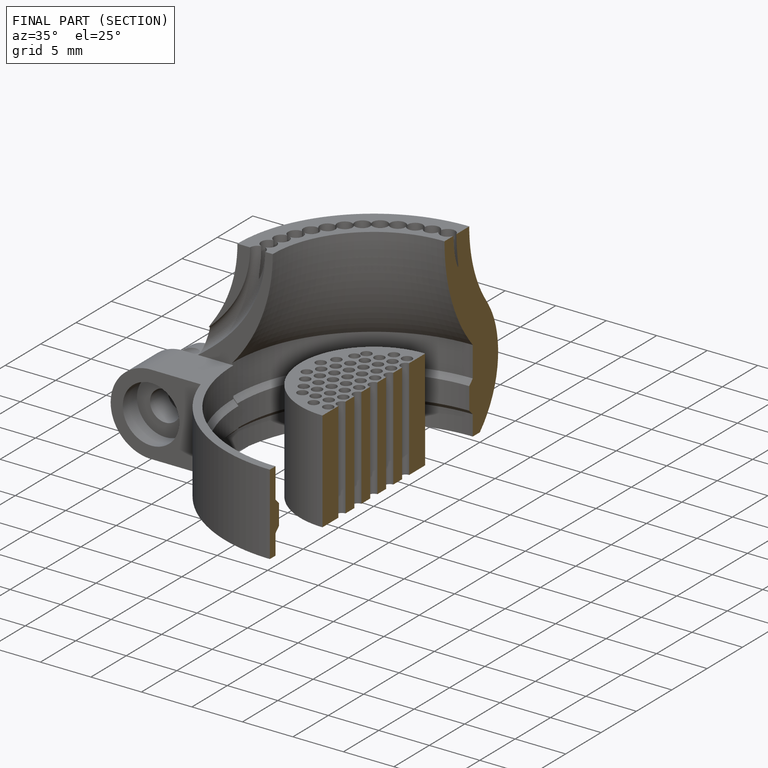
[diagram: finished part — half-section view (interior)]
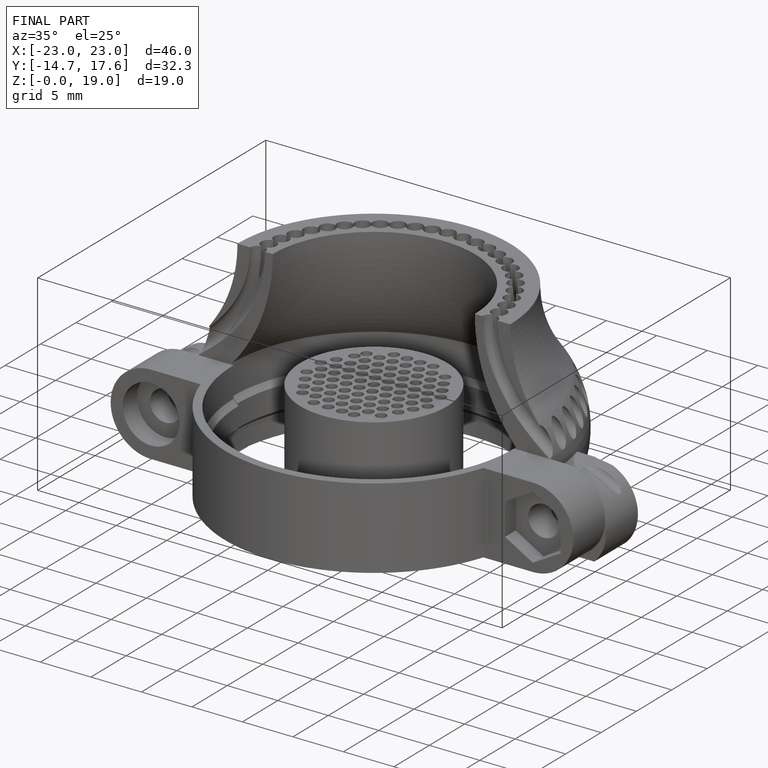
[diagram: finished part — iso view with bounding-box wireframe]
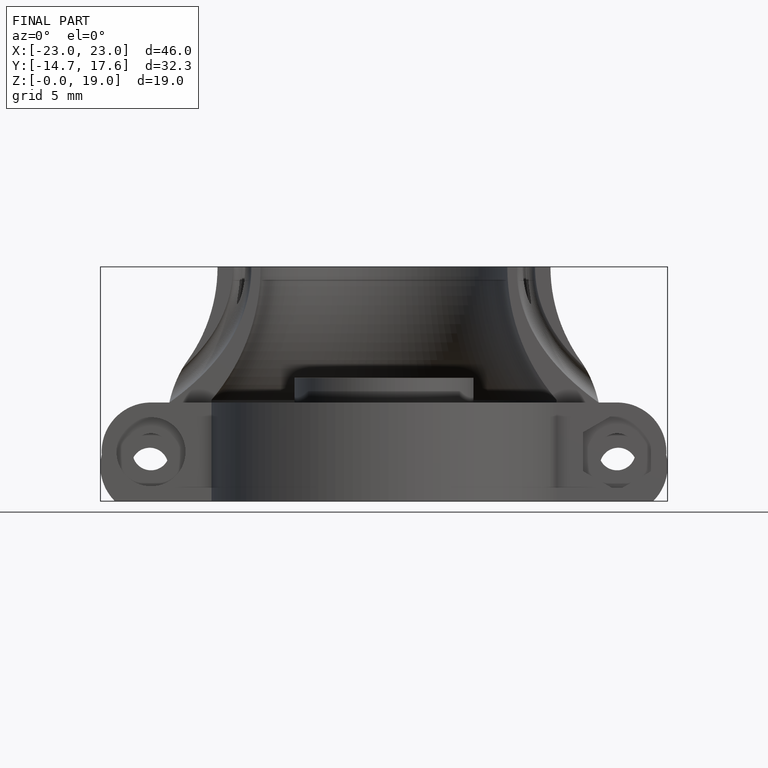
[diagram: finished part — front view with bounding-box wireframe]
